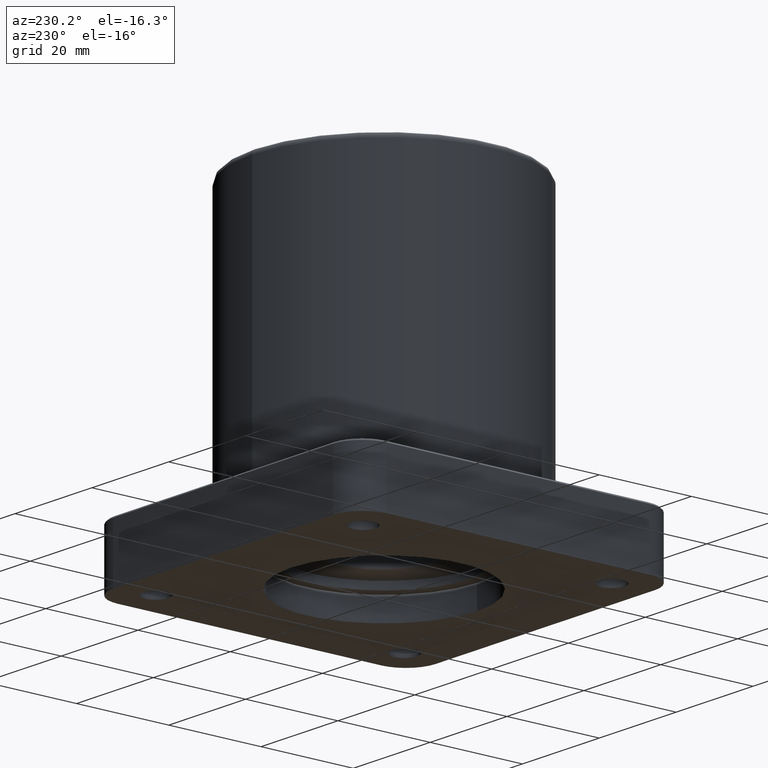
[diagram: clean part render]
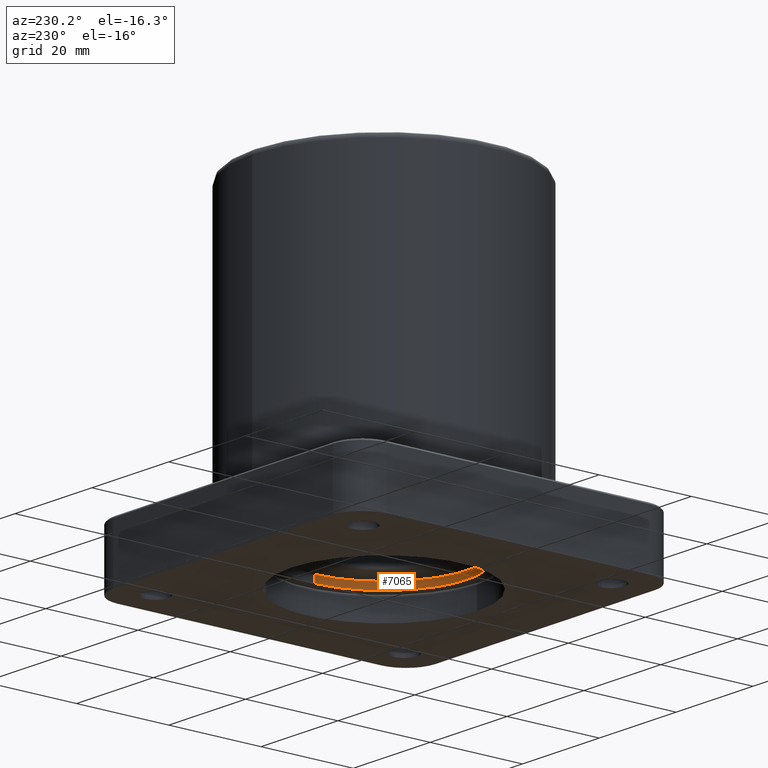
[diagram: same view with one face highlighted and labeled with its STEP entity id]
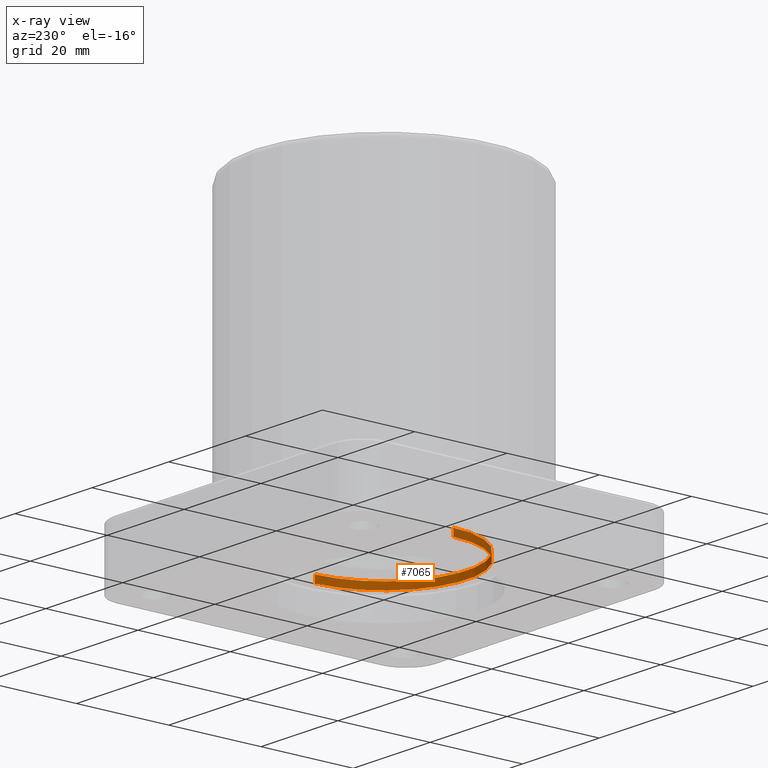
[diagram: x-ray of the same camera — body ghosted, the highlighted face saturated]
A machine part, auxiliary view. The second image highlights one B-rep face of the part: STEP entity #7065.
The next image is the same camera in x-ray: the body ghosted, the highlighted face saturated — about 23% of this face is hidden behind the body in this view.
In plain terms, the highlighted cylindrical surface (partial cylindrical patch) has radius 18.0213 mm, axis along (-0, -0, -1).
Its self-contained STEP definition (entity closure, byte-faithful):
#226 = AXIS2_PLACEMENT_3D ( 'NONE', #7161, #1612, #3432 ) ;
#378 = ORIENTED_EDGE ( 'NONE', *, *, #5783, .T. ) ;
#1222 = FACE_OUTER_BOUND ( 'NONE', #5295, .T. ) ;
#1612 = DIRECTION ( 'NONE',  ( 0.000000000000000000, 0.000000000000000000, 1.000000000000000000 ) ) ;
#1688 = ORIENTED_EDGE ( 'NONE', *, *, #3268, .T. ) ;
#2103 = VECTOR ( 'NONE', #3353, 39.37007874015748143 ) ;
#2386 = CARTESIAN_POINT ( 'NONE',  ( -5.148333495987217962E-31, -9.228208374337197904E-15, 0.2620000000000005658 ) ) ;
#2795 = VERTEX_POINT ( 'NONE', #5271 ) ;
#2968 = ORIENTED_EDGE ( 'NONE', *, *, #6617, .F. ) ;
#3074 = LINE ( 'NONE', #3672, #5617 ) ;
#3160 = VERTEX_POINT ( 'NONE', #8143 ) ;
#3268 = EDGE_CURVE ( 'NONE', #6947, #3160, #3074, .T. ) ;
#3321 = VERTEX_POINT ( 'NONE', #5675 ) ;
#3353 = DIRECTION ( 'NONE',  ( -0.000000000000000000, -0.000000000000000000, -1.000000000000000000 ) ) ;
#3432 = DIRECTION ( 'NONE',  ( 1.000000000000000000, 0.000000000000000000, 0.000000000000000000 ) ) ;
#3672 = CARTESIAN_POINT ( 'NONE',  ( 0.7095000000000000195, -9.141319683937692358E-15, 0.2620000000000005658 ) ) ;
#3683 = CIRCLE ( 'NONE', #5964, 0.7095000000000000195 ) ;
#3771 = CIRCLE ( 'NONE', #226, 0.7095000000000000195 ) ;
#4373 = AXIS2_PLACEMENT_3D ( 'NONE', #2386, #6880, #7016 ) ;
#4718 = ORIENTED_EDGE ( 'NONE', *, *, #7980, .F. ) ;
#4990 = CARTESIAN_POINT ( 'NONE',  ( -5.148333495987217962E-31, -9.228208374337197904E-15, 0.2000000000000005940 ) ) ;
#5271 = CARTESIAN_POINT ( 'NONE',  ( -0.7095000000000000195, -9.228208374337197904E-15, 0.2620000000000005658 ) ) ;
#5295 = EDGE_LOOP ( 'NONE', ( #378, #1688, #4718, #2968 ) ) ;
#5352 = LINE ( 'NONE', #6502, #2103 ) ;
#5617 = VECTOR ( 'NONE', #6406, 39.37007874015748143 ) ;
#5675 = CARTESIAN_POINT ( 'NONE',  ( -0.7095000000000000195, -9.228208374337197904E-15, 0.2000000000000005940 ) ) ;
#5783 = EDGE_CURVE ( 'NONE', #2795, #6947, #3771, .T. ) ;
#5827 = DIRECTION ( 'NONE',  ( 1.000000000000000000, 0.000000000000000000, 0.000000000000000000 ) ) ;
#5964 = AXIS2_PLACEMENT_3D ( 'NONE', #4990, #7596, #5827 ) ;
#6406 = DIRECTION ( 'NONE',  ( -0.000000000000000000, -0.000000000000000000, -1.000000000000000000 ) ) ;
#6502 = CARTESIAN_POINT ( 'NONE',  ( -0.7095000000000000195, -9.228208374337197904E-15, 0.2620000000000005658 ) ) ;
#6617 = EDGE_CURVE ( 'NONE', #2795, #3321, #5352, .T. ) ;
#6880 = DIRECTION ( 'NONE',  ( -0.000000000000000000, -0.000000000000000000, -1.000000000000000000 ) ) ;
#6947 = VERTEX_POINT ( 'NONE', #7483 ) ;
#7016 = DIRECTION ( 'NONE',  ( -1.000000000000000000, 0.000000000000000000, 0.000000000000000000 ) ) ;
#7065 = ADVANCED_FACE ( 'NONE', ( #1222 ), #8141, .F. ) ;
#7161 = CARTESIAN_POINT ( 'NONE',  ( -5.148333495987217962E-31, -9.228208374337197904E-15, 0.2620000000000005658 ) ) ;
#7483 = CARTESIAN_POINT ( 'NONE',  ( 0.7095000000000000195, -9.141319683937692358E-15, 0.2620000000000005658 ) ) ;
#7596 = DIRECTION ( 'NONE',  ( 0.000000000000000000, 0.000000000000000000, 1.000000000000000000 ) ) ;
#7980 = EDGE_CURVE ( 'NONE', #3321, #3160, #3683, .T. ) ;
#8141 = CYLINDRICAL_SURFACE ( 'NONE', #4373, 0.7095000000000000195 ) ;
#8143 = CARTESIAN_POINT ( 'NONE',  ( 0.7095000000000000195, -9.141319683937692358E-15, 0.2000000000000005940 ) ) ;